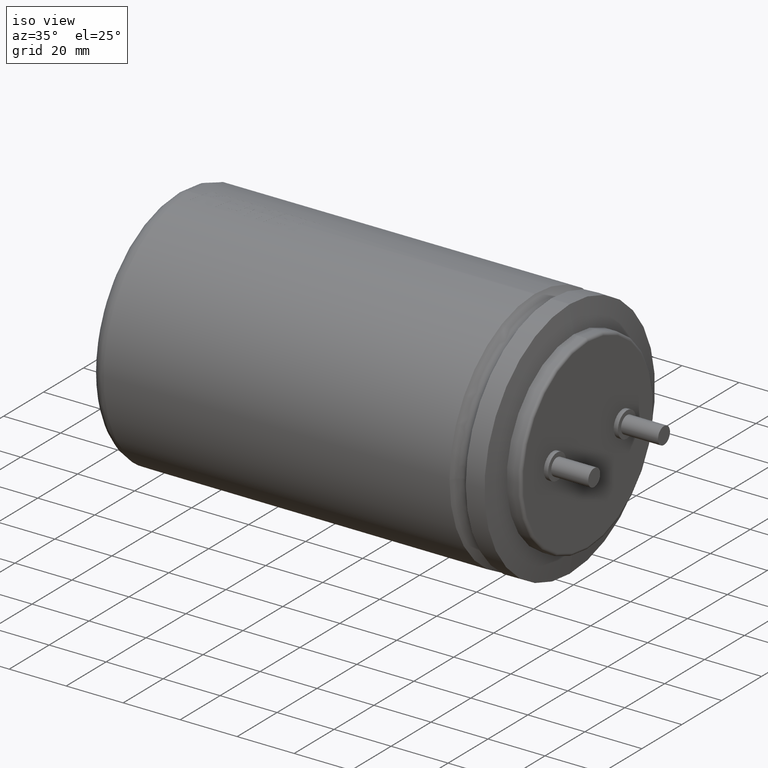
[diagram: clean part render]
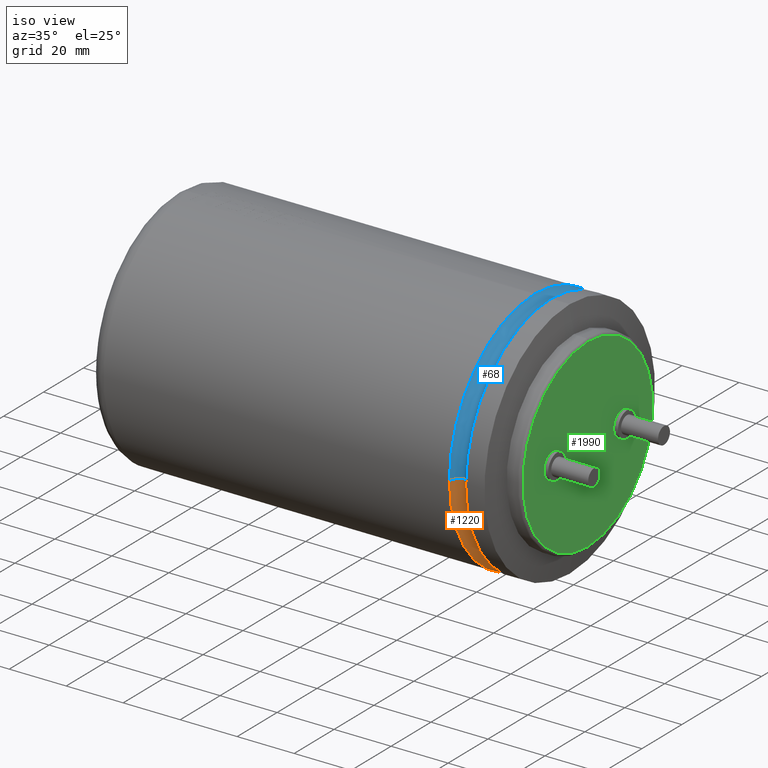
[diagram: same view with three faces highlighted in distinct colors, each labeled with its STEP entity id]
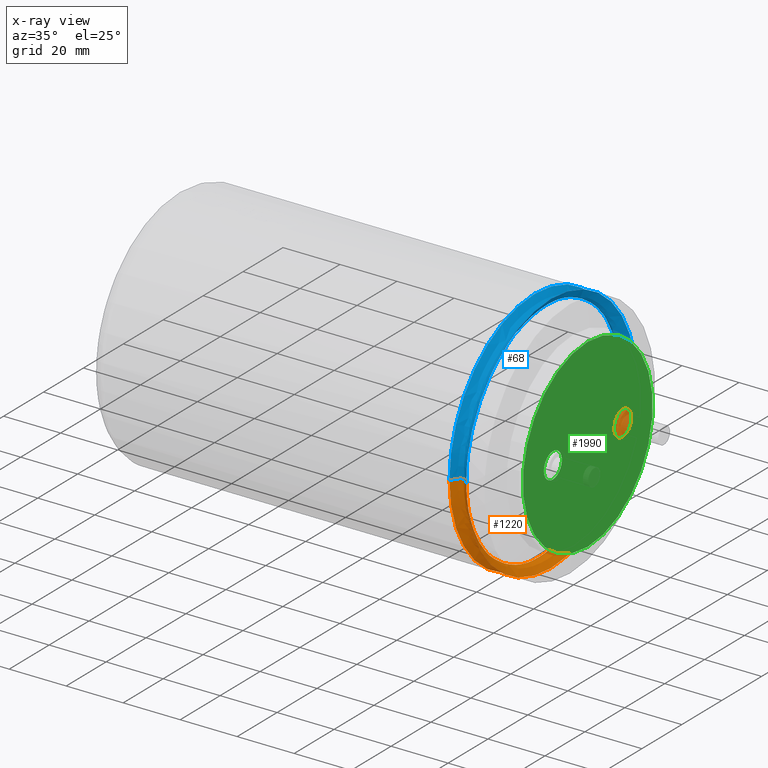
[diagram: x-ray of the same camera — body ghosted, the three highlighted faces saturated]
A machine part, iso view with three faces highlighted in distinct colors.
The next image is the same camera in x-ray (body ghosted, the three faces saturated) — at least one of them is partly hidden behind the body in this view.
Their STEP definitions:

[orange] entity #1220 — the highlighted face is a freeform B-spline surface patch.
#20 = VERTEX_POINT ( 'NONE', #3084 ) ;
#129 = VERTEX_POINT ( 'NONE', #661 ) ;
#186 = EDGE_CURVE ( 'NONE', #129, #20, #2647, .T. ) ;
#205 = CARTESIAN_POINT ( 'NONE',  ( 129.2522000000000400, -36.49140000000000600, -72.98279999999998300 ) ) ;
#373 = DIRECTION ( 'NONE',  ( 1.000000000000000000, -0.0000000000000000000, -0.0000000000000000000 ) ) ;
#558 = CARTESIAN_POINT ( 'NONE',  ( 129.2522000000000400, 36.49139999999999900, 0.0000000000000000000 ) ) ;
#614 = VERTEX_POINT ( 'NONE', #3561 ) ;
#627 = EDGE_CURVE ( 'NONE', #129, #2350, #1155, .T. ) ;
#632 = AXIS2_PLACEMENT_3D ( 'NONE', #1110, #1424, #3589 ) ;
#661 = CARTESIAN_POINT ( 'NONE',  ( 126.4032000000000300, -42.75000000000000000, 5.235365066354935500E-015 ) ) ;
#668 = CIRCLE ( 'NONE', #2909, 42.75000000000000000 ) ;
#832 = EDGE_LOOP ( 'NONE', ( #1216, #2433, #2576, #3606, #2311, #2970 ) ) ;
#952 = B_SPLINE_CURVE_WITH_KNOTS ( 'NONE', 2,
 ( #1468, #558, #1502 ),
 .UNSPECIFIED., .F., .F.,
 ( 3, 3 ),
 ( 0.0000000000000000000, 1.000000000000000000 ),
 .UNSPECIFIED. ) ;
#1110 = CARTESIAN_POINT ( 'NONE',  ( 126.4032000000000300, 0.0000000000000000000, 0.0000000000000000000 ) ) ;
#1155 = CIRCLE ( 'NONE', #632, 42.75000000000000000 ) ;
#1216 = ORIENTED_EDGE ( 'NONE', *, *, #186, .F. ) ;
#1220 = ADVANCED_FACE ( 'NONE', ( #1456 ), #3073, .F. ) ;
#1244 = CIRCLE ( 'NONE', #1940, 42.75000000000000000 ) ;
#1339 = DIRECTION ( 'NONE',  ( 0.0000000000000000000, 0.0000000000000000000, -1.000000000000000000 ) ) ;
#1368 = CARTESIAN_POINT ( 'NONE',  ( 126.4032000000000300, -42.75000000000000000, 5.235365066354935500E-015 ) ) ;
#1424 = DIRECTION ( 'NONE',  ( 1.000000000000000000, -0.0000000000000000000, -0.0000000000000000000 ) ) ;
#1447 = CARTESIAN_POINT ( 'NONE',  ( 132.1012000000000300, 42.75000000000000000, -1.047073013270987100E-014 ) ) ;
#1456 = FACE_OUTER_BOUND ( 'NONE', #832, .T. ) ;
#1468 = CARTESIAN_POINT ( 'NONE',  ( 126.4032000000000300, 42.75000000000000000, 0.0000000000000000000 ) ) ;
#1502 = CARTESIAN_POINT ( 'NONE',  ( 132.1012000000000300, 42.75000000000000000, 0.0000000000000000000 ) ) ;
#1516 = EDGE_CURVE ( 'NONE', #3878, #614, #3192, .T. ) ;
#1900 = AXIS2_PLACEMENT_3D ( 'NONE', #2156, #3731, #2462 ) ;
#1940 = AXIS2_PLACEMENT_3D ( 'NONE', #2869, #373, #1339 ) ;
#2097 = CARTESIAN_POINT ( 'NONE',  ( 126.4032000000000300, 5.235365066354935500E-015, -42.75000000000000000 ) ) ;
#2117 = CARTESIAN_POINT ( 'NONE',  ( 132.1012000000000300, 5.235365066354935500E-015, -42.75000000000000000 ) ) ;
#2156 = CARTESIAN_POINT ( 'NONE',  ( 132.1012000000000300, 0.0000000000000000000, 0.0000000000000000000 ) ) ;
#2297 = CARTESIAN_POINT ( 'NONE',  ( 126.4032000000000300, -42.75000000000000000, 5.235365066354935500E-015 ) ) ;
#2311 = ORIENTED_EDGE ( 'NONE', *, *, #1516, .F. ) ;
#2321 = CARTESIAN_POINT ( 'NONE',  ( 126.4032000000000300, 42.75000000000000000, -1.047073013270987100E-014 ) ) ;
#2350 = VERTEX_POINT ( 'NONE', #2097 ) ;
#2433 = ORIENTED_EDGE ( 'NONE', *, *, #627, .T. ) ;
#2462 = DIRECTION ( 'NONE',  ( 0.0000000000000000000, 0.0000000000000000000, -1.000000000000000000 ) ) ;
#2576 = ORIENTED_EDGE ( 'NONE', *, *, #3707, .T. ) ;
#2647 = B_SPLINE_CURVE_WITH_KNOTS ( 'NONE', 2,
 ( #2297, #2904, #3826 ),
 .UNSPECIFIED., .F., .F.,
 ( 3, 3 ),
 ( 0.0000000000000000000, 1.000000000000000000 ),
 .UNSPECIFIED. ) ;
#2719 = CARTESIAN_POINT ( 'NONE',  ( 132.1012000000000300, 0.0000000000000000000, 0.0000000000000000000 ) ) ;
#2869 = CARTESIAN_POINT ( 'NONE',  ( 126.4032000000000300, 0.0000000000000000000, 0.0000000000000000000 ) ) ;
#2904 = CARTESIAN_POINT ( 'NONE',  ( 129.2522000000000400, -36.49139999999999900, 4.468907620640572300E-015 ) ) ;
#2909 = AXIS2_PLACEMENT_3D ( 'NONE', #2719, #3659, #3030 ) ;
#2957 = CARTESIAN_POINT ( 'NONE',  ( 129.2522000000000400, 36.49139999999999900, -8.937815241281144600E-015 ) ) ;
#2966 = EDGE_CURVE ( 'NONE', #3560, #614, #952, .T. ) ;
#2970 = ORIENTED_EDGE ( 'NONE', *, *, #2990, .F. ) ;
#2982 = CARTESIAN_POINT ( 'NONE',  ( 132.1012000000000100, -42.75000000000001400, -85.49999999999998600 ) ) ;
#2990 = EDGE_CURVE ( 'NONE', #20, #3878, #668, .T. ) ;
#3030 = DIRECTION ( 'NONE',  ( 0.0000000000000000000, 0.0000000000000000000, -1.000000000000000000 ) ) ;
#3073 =( BOUNDED_SURFACE ( )  B_SPLINE_SURFACE ( 2, 3, ( 
 ( #1368, #3832, #3522, #2321 ),
 ( #3245, #205, #3259, #2957 ),
 ( #3896, #2982, #3291, #1447 ) ),
 .UNSPECIFIED., .F., .F., .F. ) 
 B_SPLINE_SURFACE_WITH_KNOTS ( ( 3, 3 ),
 ( 4, 4 ),
 ( 0.0000000000000000000, 1.000000000000000000 ),
 ( 0.0000000000000000000, 1.000000000000000000 ),
 .UNSPECIFIED. ) 
 GEOMETRIC_REPRESENTATION_ITEM ( )  RATIONAL_B_SPLINE_SURFACE ( (
 ( 1.000000000000000000, 0.3333333333333334300, 0.3333333333333334300, 1.000000000000000000),
 ( 1.000000000000000000, 0.3333333333333334300, 0.3333333333333334300, 1.000000000000000000),
 ( 1.000000000000000000, 0.3333333333333334300, 0.3333333333333334300, 1.000000000000000000) ) ) 
 REPRESENTATION_ITEM ( '' )  SURFACE ( )  );
#3084 = CARTESIAN_POINT ( 'NONE',  ( 132.1012000000000300, -42.75000000000000000, 5.235365066354935500E-015 ) ) ;
#3192 = CIRCLE ( 'NONE', #1900, 42.75000000000000000 ) ;
#3245 = CARTESIAN_POINT ( 'NONE',  ( 129.2522000000000400, -36.49139999999999900, 4.468907620640572300E-015 ) ) ;
#3259 = CARTESIAN_POINT ( 'NONE',  ( 129.2522000000000400, 36.49139999999997700, -72.98279999999999700 ) ) ;
#3291 = CARTESIAN_POINT ( 'NONE',  ( 132.1012000000000100, 42.74999999999998600, -85.50000000000001400 ) ) ;
#3357 = CARTESIAN_POINT ( 'NONE',  ( 126.4032000000000300, 42.75000000000000000, 0.0000000000000000000 ) ) ;
#3522 = CARTESIAN_POINT ( 'NONE',  ( 126.4032000000000100, 42.74999999999998600, -85.50000000000001400 ) ) ;
#3560 = VERTEX_POINT ( 'NONE', #3357 ) ;
#3561 = CARTESIAN_POINT ( 'NONE',  ( 132.1012000000000300, 42.75000000000000000, 0.0000000000000000000 ) ) ;
#3589 = DIRECTION ( 'NONE',  ( 0.0000000000000000000, 0.0000000000000000000, -1.000000000000000000 ) ) ;
#3606 = ORIENTED_EDGE ( 'NONE', *, *, #2966, .T. ) ;
#3659 = DIRECTION ( 'NONE',  ( 1.000000000000000000, -0.0000000000000000000, -0.0000000000000000000 ) ) ;
#3707 = EDGE_CURVE ( 'NONE', #2350, #3560, #1244, .T. ) ;
#3731 = DIRECTION ( 'NONE',  ( 1.000000000000000000, -0.0000000000000000000, -0.0000000000000000000 ) ) ;
#3826 = CARTESIAN_POINT ( 'NONE',  ( 132.1012000000000300, -42.75000000000000000, 5.235365066354935500E-015 ) ) ;
#3832 = CARTESIAN_POINT ( 'NONE',  ( 126.4032000000000100, -42.75000000000001400, -85.49999999999998600 ) ) ;
#3878 = VERTEX_POINT ( 'NONE', #2117 ) ;
#3896 = CARTESIAN_POINT ( 'NONE',  ( 132.1012000000000300, -42.75000000000000000, 5.235365066354935500E-015 ) ) ;

[blue] entity #68 — the highlighted face is a freeform B-spline surface patch.
#20 = VERTEX_POINT ( 'NONE', #3084 ) ;
#68 = ADVANCED_FACE ( 'NONE', ( #2714 ), #3244, .F. ) ;
#129 = VERTEX_POINT ( 'NONE', #661 ) ;
#155 = CARTESIAN_POINT ( 'NONE',  ( 126.4032000000000300, 0.0000000000000000000, 0.0000000000000000000 ) ) ;
#186 = EDGE_CURVE ( 'NONE', #129, #20, #2647, .T. ) ;
#247 = DIRECTION ( 'NONE',  ( 0.0000000000000000000, 0.0000000000000000000, -1.000000000000000000 ) ) ;
#558 = CARTESIAN_POINT ( 'NONE',  ( 129.2522000000000400, 36.49139999999999900, 0.0000000000000000000 ) ) ;
#614 = VERTEX_POINT ( 'NONE', #3561 ) ;
#648 = EDGE_CURVE ( 'NONE', #3651, #129, #1854, .T. ) ;
#660 = CIRCLE ( 'NONE', #3546, 42.75000000000000000 ) ;
#661 = CARTESIAN_POINT ( 'NONE',  ( 126.4032000000000300, -42.75000000000000000, 5.235365066354935500E-015 ) ) ;
#664 = CIRCLE ( 'NONE', #2763, 42.75000000000000000 ) ;
#902 = CARTESIAN_POINT ( 'NONE',  ( 126.4032000000000300, 0.0000000000000000000, 42.75000000000000000 ) ) ;
#911 = ORIENTED_EDGE ( 'NONE', *, *, #2966, .F. ) ;
#952 = B_SPLINE_CURVE_WITH_KNOTS ( 'NONE', 2,
 ( #1468, #558, #1502 ),
 .UNSPECIFIED., .F., .F.,
 ( 3, 3 ),
 ( 0.0000000000000000000, 1.000000000000000000 ),
 .UNSPECIFIED. ) ;
#1001 = CARTESIAN_POINT ( 'NONE',  ( 132.1012000000000100, 42.75000000000000700, 85.49999999999998600 ) ) ;
#1165 = ORIENTED_EDGE ( 'NONE', *, *, #186, .T. ) ;
#1271 = CARTESIAN_POINT ( 'NONE',  ( 126.4032000000000100, 42.75000000000000700, 85.49999999999998600 ) ) ;
#1334 = CARTESIAN_POINT ( 'NONE',  ( 126.4032000000000100, -42.74999999999998600, 85.49999999999998600 ) ) ;
#1459 = DIRECTION ( 'NONE',  ( 1.000000000000000000, -0.0000000000000000000, -0.0000000000000000000 ) ) ;
#1468 = CARTESIAN_POINT ( 'NONE',  ( 126.4032000000000300, 42.75000000000000000, 0.0000000000000000000 ) ) ;
#1485 = ORIENTED_EDGE ( 'NONE', *, *, #3557, .F. ) ;
#1502 = CARTESIAN_POINT ( 'NONE',  ( 132.1012000000000300, 42.75000000000000000, 0.0000000000000000000 ) ) ;
#1608 = CARTESIAN_POINT ( 'NONE',  ( 126.4032000000000300, 42.75000000000000000, 0.0000000000000000000 ) ) ;
#1624 = CARTESIAN_POINT ( 'NONE',  ( 132.1012000000000100, -42.74999999999998600, 85.49999999999998600 ) ) ;
#1721 = CARTESIAN_POINT ( 'NONE',  ( 126.4032000000000300, 0.0000000000000000000, 0.0000000000000000000 ) ) ;
#1722 = VERTEX_POINT ( 'NONE', #2068 ) ;
#1752 = DIRECTION ( 'NONE',  ( 1.000000000000000000, -0.0000000000000000000, -0.0000000000000000000 ) ) ;
#1755 = EDGE_CURVE ( 'NONE', #1722, #20, #3241, .T. ) ;
#1775 = CARTESIAN_POINT ( 'NONE',  ( 132.1012000000000300, 0.0000000000000000000, 0.0000000000000000000 ) ) ;
#1854 = CIRCLE ( 'NONE', #2360, 42.75000000000000000 ) ;
#1916 = ORIENTED_EDGE ( 'NONE', *, *, #2134, .T. ) ;
#1921 = CARTESIAN_POINT ( 'NONE',  ( 129.2522000000000400, 36.49139999999999900, 0.0000000000000000000 ) ) ;
#1934 = CARTESIAN_POINT ( 'NONE',  ( 129.2522000000000400, -36.49139999999999200, 72.98279999999998300 ) ) ;
#2044 = DIRECTION ( 'NONE',  ( 0.0000000000000000000, 0.0000000000000000000, -1.000000000000000000 ) ) ;
#2068 = CARTESIAN_POINT ( 'NONE',  ( 132.1012000000000300, 0.0000000000000000000, 42.75000000000000000 ) ) ;
#2134 = EDGE_CURVE ( 'NONE', #3560, #3651, #660, .T. ) ;
#2254 = CARTESIAN_POINT ( 'NONE',  ( 129.2522000000000400, -36.49139999999999900, 4.468907620640572300E-015 ) ) ;
#2296 = EDGE_LOOP ( 'NONE', ( #2961, #1165, #3079, #1485, #911, #1916 ) ) ;
#2297 = CARTESIAN_POINT ( 'NONE',  ( 126.4032000000000300, -42.75000000000000000, 5.235365066354935500E-015 ) ) ;
#2299 = DIRECTION ( 'NONE',  ( 1.000000000000000000, -0.0000000000000000000, -0.0000000000000000000 ) ) ;
#2317 = AXIS2_PLACEMENT_3D ( 'NONE', #2927, #1459, #247 ) ;
#2360 = AXIS2_PLACEMENT_3D ( 'NONE', #155, #1752, #3873 ) ;
#2517 = CARTESIAN_POINT ( 'NONE',  ( 132.1012000000000300, -42.75000000000000000, 5.235365066354935500E-015 ) ) ;
#2553 = CARTESIAN_POINT ( 'NONE',  ( 129.2522000000000400, 36.49139999999999900, 72.98279999999998300 ) ) ;
#2647 = B_SPLINE_CURVE_WITH_KNOTS ( 'NONE', 2,
 ( #2297, #2904, #3826 ),
 .UNSPECIFIED., .F., .F.,
 ( 3, 3 ),
 ( 0.0000000000000000000, 1.000000000000000000 ),
 .UNSPECIFIED. ) ;
#2714 = FACE_OUTER_BOUND ( 'NONE', #2296, .T. ) ;
#2745 = DIRECTION ( 'NONE',  ( 0.0000000000000000000, 0.0000000000000000000, -1.000000000000000000 ) ) ;
#2763 = AXIS2_PLACEMENT_3D ( 'NONE', #1775, #3925, #2745 ) ;
#2837 = CARTESIAN_POINT ( 'NONE',  ( 126.4032000000000300, -42.75000000000000000, 5.235365066354935500E-015 ) ) ;
#2904 = CARTESIAN_POINT ( 'NONE',  ( 129.2522000000000400, -36.49139999999999900, 4.468907620640572300E-015 ) ) ;
#2927 = CARTESIAN_POINT ( 'NONE',  ( 132.1012000000000300, 0.0000000000000000000, 0.0000000000000000000 ) ) ;
#2961 = ORIENTED_EDGE ( 'NONE', *, *, #648, .T. ) ;
#2966 = EDGE_CURVE ( 'NONE', #3560, #614, #952, .T. ) ;
#3079 = ORIENTED_EDGE ( 'NONE', *, *, #1755, .F. ) ;
#3084 = CARTESIAN_POINT ( 'NONE',  ( 132.1012000000000300, -42.75000000000000000, 5.235365066354935500E-015 ) ) ;
#3241 = CIRCLE ( 'NONE', #2317, 42.75000000000000000 ) ;
#3244 =( BOUNDED_SURFACE ( )  B_SPLINE_SURFACE ( 2, 3, ( 
 ( #1608, #1271, #1334, #2837 ),
 ( #1921, #2553, #1934, #2254 ),
 ( #3429, #1001, #1624, #2517 ) ),
 .UNSPECIFIED., .F., .F., .F. ) 
 B_SPLINE_SURFACE_WITH_KNOTS ( ( 3, 3 ),
 ( 4, 4 ),
 ( 0.0000000000000000000, 1.000000000000000000 ),
 ( 0.0000000000000000000, 1.000000000000000000 ),
 .UNSPECIFIED. ) 
 GEOMETRIC_REPRESENTATION_ITEM ( )  RATIONAL_B_SPLINE_SURFACE ( (
 ( 1.000000000000000000, 0.3333333333333334300, 0.3333333333333334300, 1.000000000000000000),
 ( 1.000000000000000000, 0.3333333333333334300, 0.3333333333333334300, 1.000000000000000000),
 ( 1.000000000000000000, 0.3333333333333334300, 0.3333333333333334300, 1.000000000000000000) ) ) 
 REPRESENTATION_ITEM ( '' )  SURFACE ( )  );
#3357 = CARTESIAN_POINT ( 'NONE',  ( 126.4032000000000300, 42.75000000000000000, 0.0000000000000000000 ) ) ;
#3429 = CARTESIAN_POINT ( 'NONE',  ( 132.1012000000000300, 42.75000000000000000, 0.0000000000000000000 ) ) ;
#3546 = AXIS2_PLACEMENT_3D ( 'NONE', #1721, #2299, #2044 ) ;
#3557 = EDGE_CURVE ( 'NONE', #614, #1722, #664, .T. ) ;
#3560 = VERTEX_POINT ( 'NONE', #3357 ) ;
#3561 = CARTESIAN_POINT ( 'NONE',  ( 132.1012000000000300, 42.75000000000000000, 0.0000000000000000000 ) ) ;
#3651 = VERTEX_POINT ( 'NONE', #902 ) ;
#3826 = CARTESIAN_POINT ( 'NONE',  ( 132.1012000000000300, -42.75000000000000000, 5.235365066354935500E-015 ) ) ;
#3873 = DIRECTION ( 'NONE',  ( 0.0000000000000000000, 0.0000000000000000000, -1.000000000000000000 ) ) ;
#3925 = DIRECTION ( 'NONE',  ( 1.000000000000000000, -0.0000000000000000000, -0.0000000000000000000 ) ) ;

[green] entity #1990 — the highlighted planar face has unit normal (1, 0, 0).
#36 = CARTESIAN_POINT ( 'NONE',  ( 145.0000000000000300, 0.0000000000000000000, 0.0000000000000000000 ) ) ;
#40 = EDGE_CURVE ( 'NONE', #2544, #647, #1366, .T. ) ;
#118 = ORIENTED_EDGE ( 'NONE', *, *, #2507, .F. ) ;
#203 = ORIENTED_EDGE ( 'NONE', *, *, #513, .T. ) ;
#207 = EDGE_LOOP ( 'NONE', ( #3175, #1831 ) ) ;
#252 = CARTESIAN_POINT ( 'NONE',  ( 145.0000000000000300, 0.0000000000000000000, 0.0000000000000000000 ) ) ;
#334 = CARTESIAN_POINT ( 'NONE',  ( 145.0000000000000300, 17.49999999999999600, 0.0000000000000000000 ) ) ;
#335 = CARTESIAN_POINT ( 'NONE',  ( 145.0000000000000300, 0.0000000000000000000, 0.0000000000000000000 ) ) ;
#347 = VERTEX_POINT ( 'NONE', #2977 ) ;
#399 = VERTEX_POINT ( 'NONE', #603 ) ;
#513 = EDGE_CURVE ( 'NONE', #2248, #347, #671, .T. ) ;
#603 = CARTESIAN_POINT ( 'NONE',  ( 145.0000000000000300, 17.49999999999999600, -4.500000000000000000 ) ) ;
#647 = VERTEX_POINT ( 'NONE', #1761 ) ;
#671 = CIRCLE ( 'NONE', #2222, 32.52882499999999800 ) ;
#685 = ORIENTED_EDGE ( 'NONE', *, *, #2380, .F. ) ;
#716 = DIRECTION ( 'NONE',  ( 0.0000000000000000000, 0.0000000000000000000, -1.000000000000000000 ) ) ;
#818 = AXIS2_PLACEMENT_3D ( 'NONE', #1212, #3376, #908 ) ;
#908 = DIRECTION ( 'NONE',  ( 0.0000000000000000000, 0.0000000000000000000, -1.000000000000000000 ) ) ;
#932 = EDGE_CURVE ( 'NONE', #347, #2248, #3771, .T. ) ;
#937 = EDGE_CURVE ( 'NONE', #647, #2544, #2086, .T. ) ;
#1028 = AXIS2_PLACEMENT_3D ( 'NONE', #252, #3385, #3995 ) ;
#1054 = EDGE_LOOP ( 'NONE', ( #203, #2684 ) ) ;
#1106 = CARTESIAN_POINT ( 'NONE',  ( 145.0000000000000300, 0.0000000000000000000, -32.52882499999999800 ) ) ;
#1147 = FACE_BOUND ( 'NONE', #207, .T. ) ;
#1210 = DIRECTION ( 'NONE',  ( 0.0000000000000000000, 0.0000000000000000000, -1.000000000000000000 ) ) ;
#1212 = CARTESIAN_POINT ( 'NONE',  ( 145.0000000000000300, 17.49999999999999600, 0.0000000000000000000 ) ) ;
#1215 = DIRECTION ( 'NONE',  ( 1.000000000000000000, 0.0000000000000000000, 0.0000000000000000000 ) ) ;
#1366 = CIRCLE ( 'NONE', #2613, 4.500000000000000000 ) ;
#1521 = CARTESIAN_POINT ( 'NONE',  ( 145.0000000000000300, -17.50000000000000400, 0.0000000000000000000 ) ) ;
#1594 = PLANE ( 'NONE',  #3695 ) ;
#1761 = CARTESIAN_POINT ( 'NONE',  ( 145.0000000000000300, -17.50000000000000400, -4.500000000000000000 ) ) ;
#1791 = CIRCLE ( 'NONE', #2031, 4.500000000000000000 ) ;
#1827 = CARTESIAN_POINT ( 'NONE',  ( 145.0000000000000300, 17.49999999999999600, 4.500000000000000000 ) ) ;
#1831 = ORIENTED_EDGE ( 'NONE', *, *, #937, .F. ) ;
#1872 = EDGE_LOOP ( 'NONE', ( #118, #685 ) ) ;
#1893 = DIRECTION ( 'NONE',  ( 1.000000000000000000, 0.0000000000000000000, 0.0000000000000000000 ) ) ;
#1919 = DIRECTION ( 'NONE',  ( 1.000000000000000000, 0.0000000000000000000, 0.0000000000000000000 ) ) ;
#1922 = VERTEX_POINT ( 'NONE', #1827 ) ;
#1990 = ADVANCED_FACE ( 'NONE', ( #3566, #3279, #1147 ), #1594, .T. ) ;
#2031 = AXIS2_PLACEMENT_3D ( 'NONE', #334, #1893, #2811 ) ;
#2086 = CIRCLE ( 'NONE', #2283, 4.500000000000000000 ) ;
#2195 = DIRECTION ( 'NONE',  ( 1.000000000000000000, 0.0000000000000000000, 0.0000000000000000000 ) ) ;
#2222 = AXIS2_PLACEMENT_3D ( 'NONE', #335, #1919, #716 ) ;
#2248 = VERTEX_POINT ( 'NONE', #1106 ) ;
#2283 = AXIS2_PLACEMENT_3D ( 'NONE', #4007, #3982, #1210 ) ;
#2380 = EDGE_CURVE ( 'NONE', #399, #1922, #2813, .T. ) ;
#2507 = EDGE_CURVE ( 'NONE', #1922, #399, #1791, .T. ) ;
#2544 = VERTEX_POINT ( 'NONE', #2795 ) ;
#2613 = AXIS2_PLACEMENT_3D ( 'NONE', #1521, #1215, #2771 ) ;
#2684 = ORIENTED_EDGE ( 'NONE', *, *, #932, .T. ) ;
#2771 = DIRECTION ( 'NONE',  ( 0.0000000000000000000, 0.0000000000000000000, -1.000000000000000000 ) ) ;
#2795 = CARTESIAN_POINT ( 'NONE',  ( 145.0000000000000300, -17.50000000000000400, 4.500000000000000000 ) ) ;
#2811 = DIRECTION ( 'NONE',  ( 0.0000000000000000000, 0.0000000000000000000, -1.000000000000000000 ) ) ;
#2813 = CIRCLE ( 'NONE', #818, 4.500000000000000000 ) ;
#2977 = CARTESIAN_POINT ( 'NONE',  ( 145.0000000000000300, 4.044864481584807400E-015, 32.52882499999999800 ) ) ;
#3133 = DIRECTION ( 'NONE',  ( 0.0000000000000000000, 0.0000000000000000000, -1.000000000000000000 ) ) ;
#3175 = ORIENTED_EDGE ( 'NONE', *, *, #40, .F. ) ;
#3279 = FACE_BOUND ( 'NONE', #1872, .T. ) ;
#3376 = DIRECTION ( 'NONE',  ( 1.000000000000000000, 0.0000000000000000000, 0.0000000000000000000 ) ) ;
#3385 = DIRECTION ( 'NONE',  ( 1.000000000000000000, 0.0000000000000000000, 0.0000000000000000000 ) ) ;
#3566 = FACE_OUTER_BOUND ( 'NONE', #1054, .T. ) ;
#3695 = AXIS2_PLACEMENT_3D ( 'NONE', #36, #2195, #3133 ) ;
#3771 = CIRCLE ( 'NONE', #1028, 32.52882499999999800 ) ;
#3982 = DIRECTION ( 'NONE',  ( 1.000000000000000000, 0.0000000000000000000, 0.0000000000000000000 ) ) ;
#3995 = DIRECTION ( 'NONE',  ( 0.0000000000000000000, 0.0000000000000000000, -1.000000000000000000 ) ) ;
#4007 = CARTESIAN_POINT ( 'NONE',  ( 145.0000000000000300, -17.50000000000000400, 0.0000000000000000000 ) ) ;